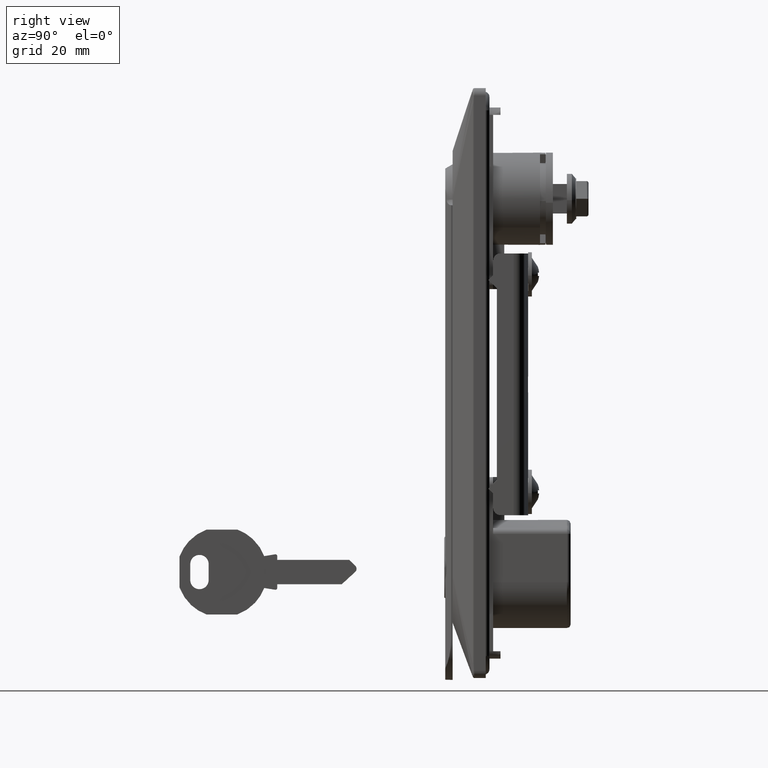
[diagram: clean part render]
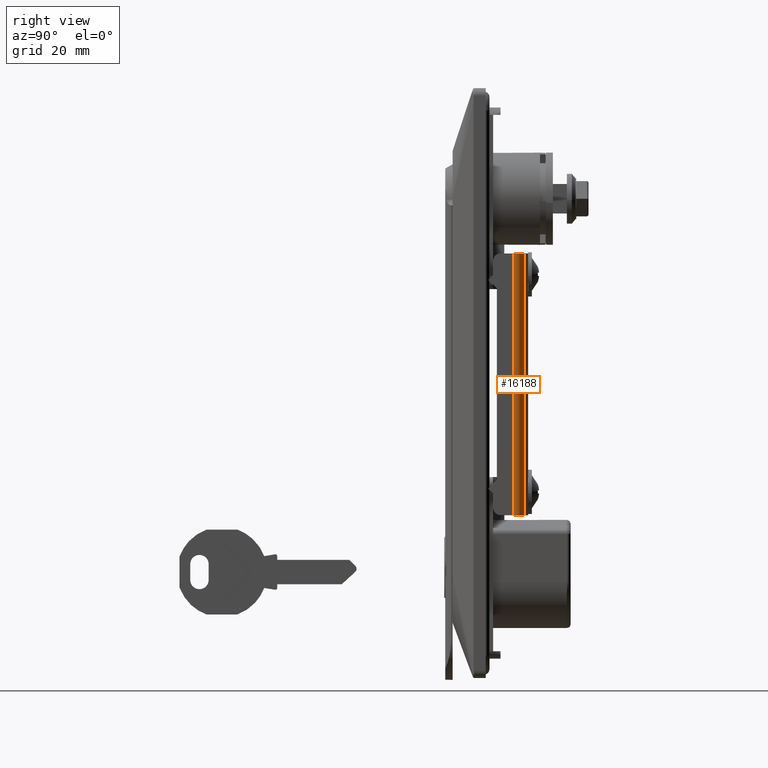
[diagram: same view with one face highlighted and labeled with its STEP entity id]
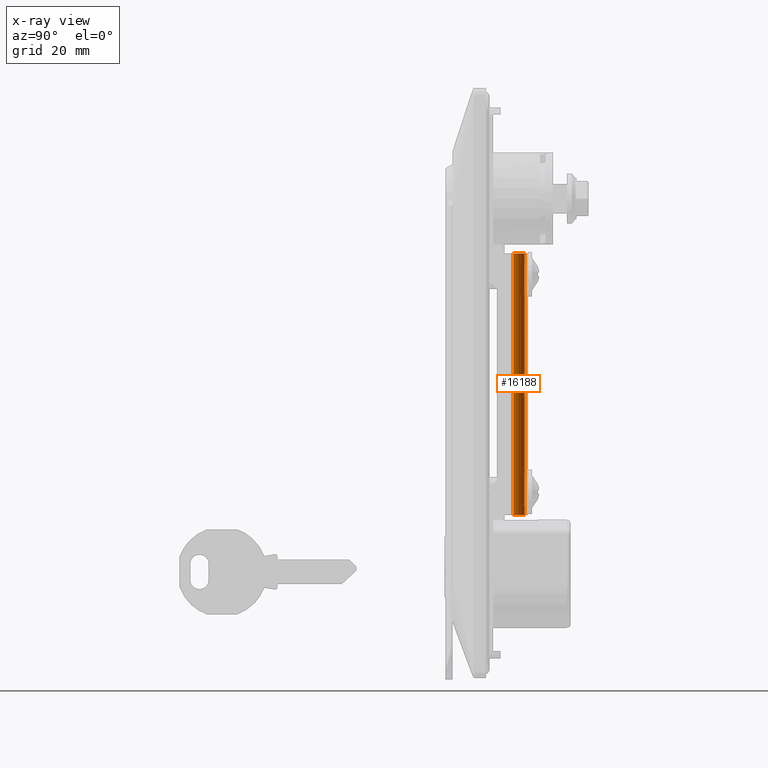
[diagram: x-ray of the same camera — body ghosted, the highlighted face saturated]
A machine part, right view. The second image highlights one B-rep face of the part: STEP entity #16188.
The next image is the same camera in x-ray: the body ghosted, the highlighted face saturated — about 0% of this face is hidden behind the body in this view.
In plain terms, the highlighted face is a freeform B-spline surface patch.
Its self-contained STEP definition (entity closure, byte-faithful):
#14945=CARTESIAN_POINT('',(17.499999976251299,7.526901903205672,-85.846610498779597));
#14946=VERTEX_POINT('',#14945);
#14952=CARTESIAN_POINT('',(17.499999976251299,7.526901903205672,-14.846607126460350));
#14953=VERTEX_POINT('',#14952);
#14954=CARTESIAN_POINT('',(17.499999976251299,7.526901903205672,-14.846607126460350));
#14955=CARTESIAN_POINT('',(17.499999976251299,7.526901903205672,-85.846610498779597));
#14956=QUASI_UNIFORM_CURVE('',1,(#14954,#14955),.UNSPECIFIED.,.F.,.U.);
#14957=EDGE_CURVE('',#14953,#14946,#14956,.T.);
#16087=CARTESIAN_POINT('',(14.900855913028501,10.500000498722940,-85.846610498779597));
#16088=VERTEX_POINT('',#16087);
#16103=CARTESIAN_POINT('',(14.900855913028501,10.500000498722940,-14.846607126460350));
#16104=VERTEX_POINT('',#16103);
#16118=CARTESIAN_POINT('',(14.900855913028501,10.500000498722940,-14.846607126460350));
#16119=CARTESIAN_POINT('',(14.900855913028501,10.500000498722940,-85.846610498779597));
#16120=QUASI_UNIFORM_CURVE('',1,(#16118,#16119),.UNSPECIFIED.,.F.,.U.);
#16121=EDGE_CURVE('',#16104,#16088,#16120,.T.);
#16144=CARTESIAN_POINT('',(17.499885745438359,7.500722295467088,-13.071607042152371));
#16145=CARTESIAN_POINT('',(17.499885745438359,7.500722295467088,-87.665985585195301));
#16146=CARTESIAN_POINT('',(17.524298624603755,10.298161164800009,-13.071607042152367));
#16147=CARTESIAN_POINT('',(17.524298624603755,10.298161164800009,-87.665985585195287));
#16148=CARTESIAN_POINT('',(14.735377132122260,10.517654046458160,-13.071607042152371));
#16149=CARTESIAN_POINT('',(14.735377132122260,10.517654046458160,-87.665985585195301));
#16157=(BOUNDED_SURFACE()B_SPLINE_SURFACE(1,2,((#16144,#16146,#16148),(#16145,#16147,#16149)),.UNSPECIFIED.,.F.,.F.,.U.)B_SPLINE_SURFACE_WITH_KNOTS((2,2),(3,3),(0.0,74.594378543042950),(0.0,4.726925931896249),.UNSPECIFIED.)GEOMETRIC_REPRESENTATION_ITEM()RATIONAL_B_SPLINE_SURFACE(((1.0,0.731353701619171,1.0),(1.0,0.731353701619171,1.0)))REPRESENTATION_ITEM('')SURFACE());
#16158=CARTESIAN_POINT('',(17.499999976251271,7.526901903205672,-85.846610498779597));
#16159=CARTESIAN_POINT('',(17.499999976251274,10.149563853193861,-85.846610498779597));
#16160=CARTESIAN_POINT('',(14.900855913028501,10.500000498722960,-85.846610498779597));
#16168=(BOUNDED_CURVE()B_SPLINE_CURVE(2,(#16158,#16159,#16160),.UNSPECIFIED.,.F.,.U.)CURVE()GEOMETRIC_REPRESENTATION_ITEM()QUASI_UNIFORM_CURVE()RATIONAL_B_SPLINE_CURVE((1.0,0.752867414204958,1.0))REPRESENTATION_ITEM(''));
#16169=EDGE_CURVE('',#14946,#16088,#16168,.T.);
#16170=ORIENTED_EDGE('',*,*,#16169,.T.);
#16171=ORIENTED_EDGE('',*,*,#16121,.F.);
#16172=CARTESIAN_POINT('',(17.499999976251271,7.526901903205672,-14.846607126460350));
#16173=CARTESIAN_POINT('',(17.499999976251274,10.149563853193861,-14.846607126460359));
#16174=CARTESIAN_POINT('',(14.900855913028501,10.500000498722960,-14.846607126460350));
#16182=(BOUNDED_CURVE()B_SPLINE_CURVE(2,(#16172,#16173,#16174),.UNSPECIFIED.,.F.,.U.)CURVE()GEOMETRIC_REPRESENTATION_ITEM()QUASI_UNIFORM_CURVE()RATIONAL_B_SPLINE_CURVE((1.0,0.752867414204958,1.0))REPRESENTATION_ITEM(''));
#16183=EDGE_CURVE('',#14953,#16104,#16182,.T.);
#16184=ORIENTED_EDGE('',*,*,#16183,.F.);
#16185=ORIENTED_EDGE('',*,*,#14957,.T.);
#16186=EDGE_LOOP('',(#16170,#16171,#16184,#16185));
#16187=FACE_OUTER_BOUND('',#16186,.T.);
#16188=ADVANCED_FACE('',(#16187),#16157,.T.);